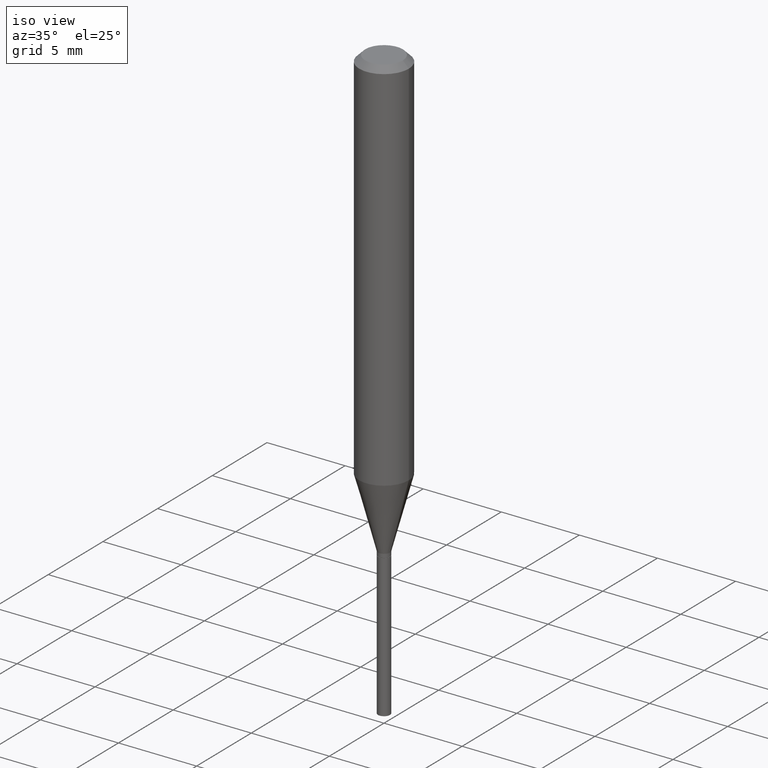
[diagram: clean part render]
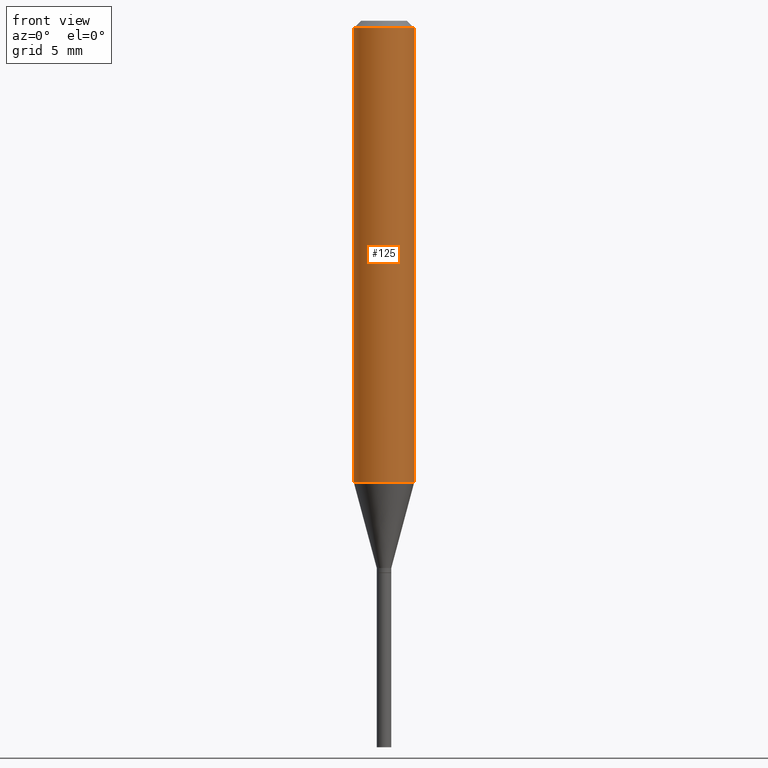
[diagram: tour spotlight — one face highlighted and labeled with its STEP entity id]
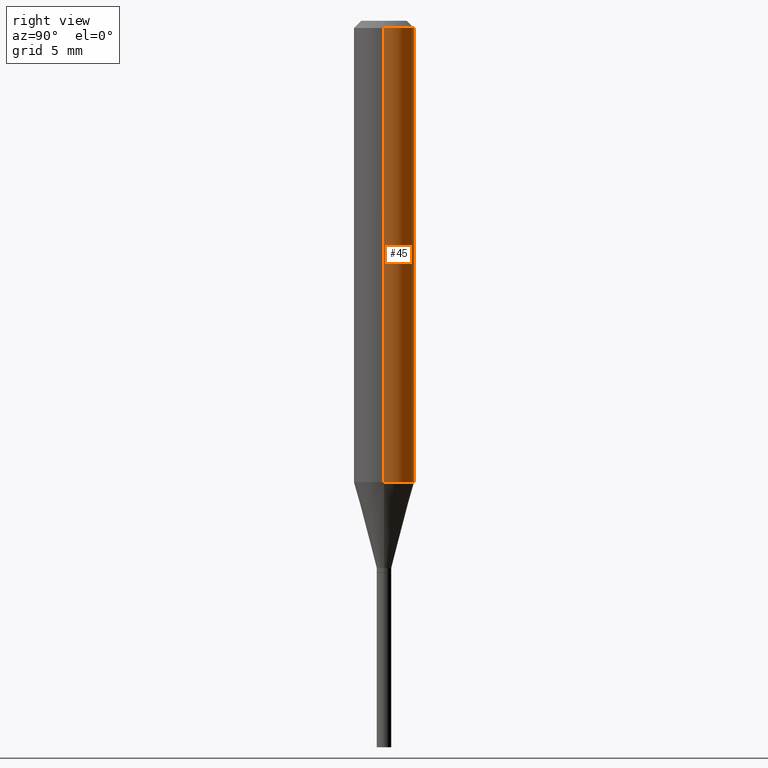
[diagram: tour spotlight — one face highlighted and labeled with its STEP entity id]
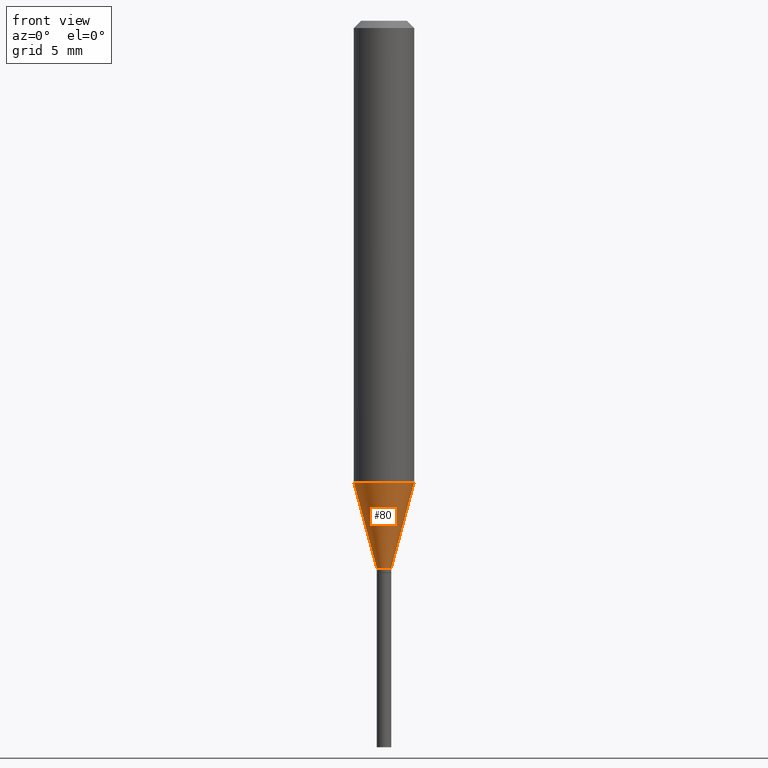
[diagram: tour spotlight — one face highlighted and labeled with its STEP entity id]
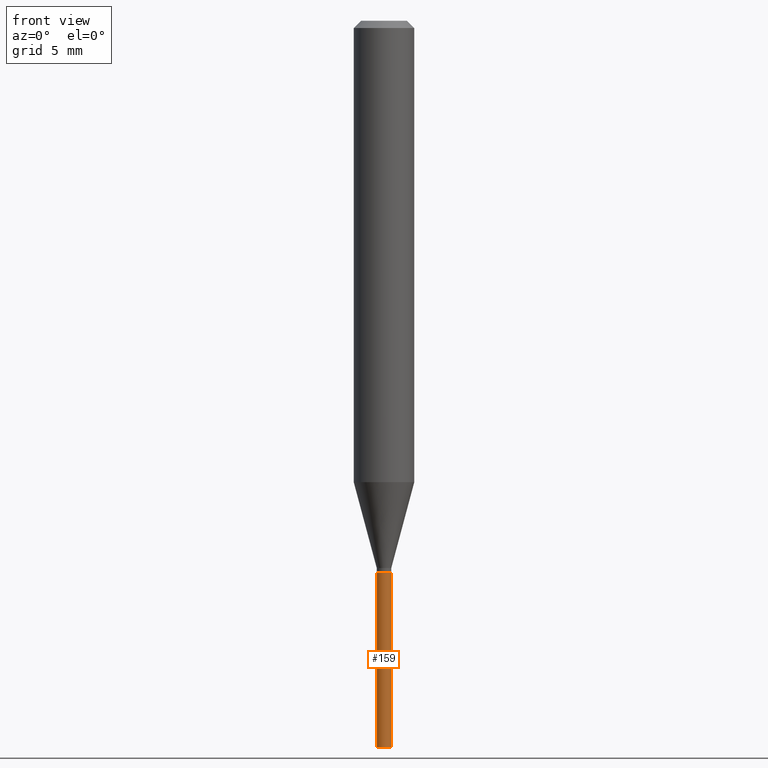
[diagram: tour spotlight — one face highlighted and labeled with its STEP entity id]
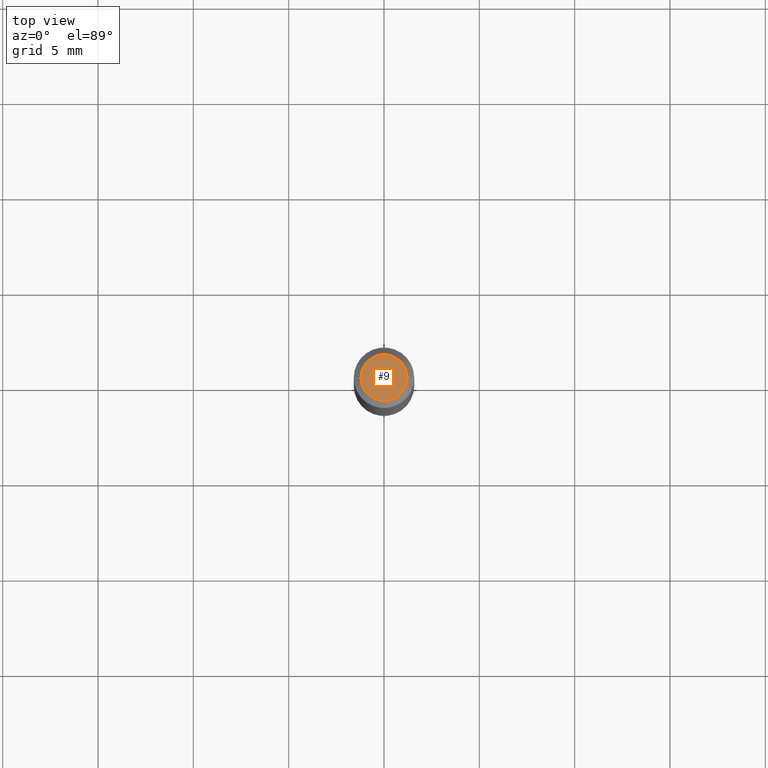
[diagram: tour spotlight — one face highlighted and labeled with its STEP entity id]
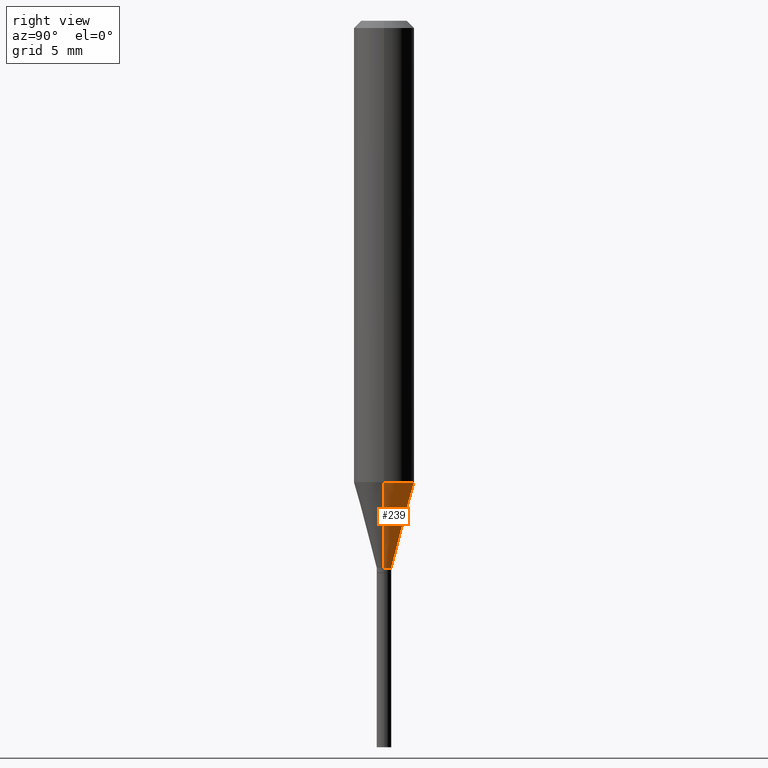
[diagram: tour spotlight — one face highlighted and labeled with its STEP entity id]
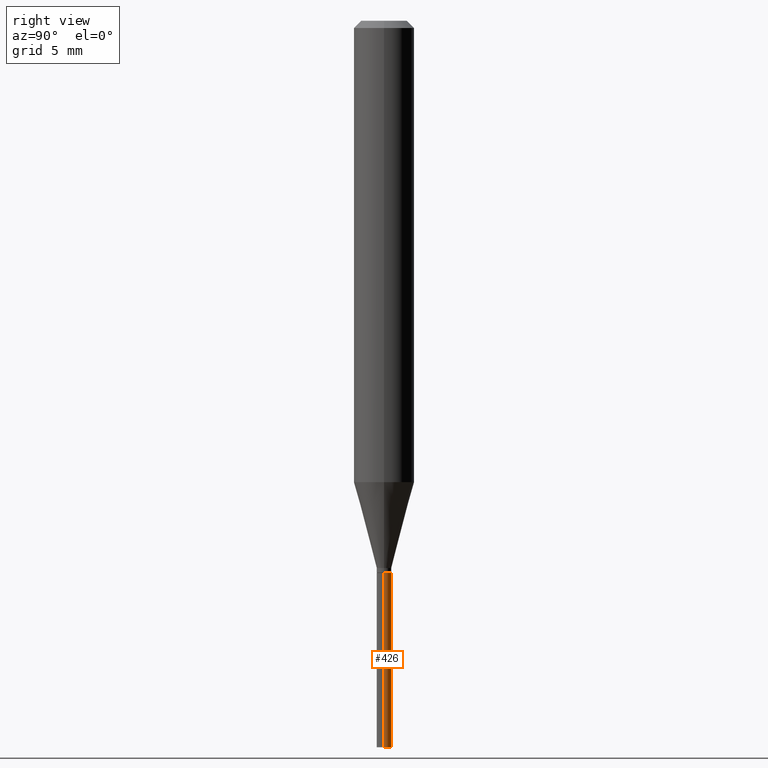
[diagram: tour spotlight — one face highlighted and labeled with its STEP entity id]
A machine part: a face-by-face anatomy tour. The part has 16 B-rep faces; the first image is the clean iso view, then the 7 largest visible faces are spotlighted one at a time (largest first), each with its STEP entity span.

Face 1 — front view, entity #125. In plain terms, the highlighted cylindrical surface (edge-blend (fillet) strip) has radius 1.5875 mm, axis along (-0, 0, 1).
Definition (entity closure, byte-faithful):
#2 = CYLINDRICAL_SURFACE ( 'NONE', #328, 0.06250000000000000000 ) ;
#10 = DIRECTION ( 'NONE',  ( 1.000000000000000000, -6.982962677686266711E-15, 0.000000000000000000 ) ) ;
#12 = EDGE_LOOP ( 'NONE', ( #315, #388, #269, #97 ) ) ;
#41 = FACE_OUTER_BOUND ( 'NONE', #12, .T. ) ;
#42 = CARTESIAN_POINT ( 'NONE',  ( 0.06250000000000000000, -4.888073874380388472E-16, -0.01499999999999999944 ) ) ;
#46 = VECTOR ( 'NONE', #271, 39.37007874015748143 ) ;
#47 = AXIS2_PLACEMENT_3D ( 'NONE', #373, #50, #10 ) ;
#50 = DIRECTION ( 'NONE',  ( -2.445468806185136597E-29, 3.491481338843145583E-15, 1.000000000000000000 ) ) ;
#65 = CIRCLE ( 'NONE', #87, 0.06250000000000000000 ) ;
#72 = EDGE_CURVE ( 'NONE', #314, #237, #309, .T. ) ;
#83 = CARTESIAN_POINT ( 'NONE',  ( -0.06249999999999999306, -2.882341379906236744E-15, -0.9527275866404792959 ) ) ;
#87 = AXIS2_PLACEMENT_3D ( 'NONE', #178, #112, #211 ) ;
#97 = ORIENTED_EDGE ( 'NONE', *, *, #381, .F. ) ;
#112 = DIRECTION ( 'NONE',  ( -2.445468806185136597E-29, 3.491481338843145583E-15, 1.000000000000000000 ) ) ;
#117 = DIRECTION ( 'NONE',  ( -2.445468806185136877E-29, 3.491481338843145188E-15, 1.000000000000000000 ) ) ;
#122 = CARTESIAN_POINT ( 'NONE',  ( 0.06250000000000000000, -4.364351673553916694E-16, 3.047610484872459871E-30 ) ) ;
#125 = ADVANCED_FACE ( 'NONE', ( #41 ), #2, .T. ) ;
#126 = EDGE_CURVE ( 'NONE', #314, #277, #65, .T. ) ;
#178 = CARTESIAN_POINT ( 'NONE',  ( 2.329865593921339312E-29, -3.326430589756299754E-15, -0.9527275866404792959 ) ) ;
#209 = VERTEX_POINT ( 'NONE', #42 ) ;
#211 = DIRECTION ( 'NONE',  ( 1.000000000000000000, -6.982962677686262766E-15, 0.000000000000000000 ) ) ;
#236 = CARTESIAN_POINT ( 'NONE',  ( -0.06250000000000000000, 4.440892098500626162E-16, -3.074334431409316114E-30 ) ) ;
#237 = VERTEX_POINT ( 'NONE', #422 ) ;
#246 = CARTESIAN_POINT ( 'NONE',  ( 0.06249999999999999306, -3.762865757111691029E-15, -0.9527275866404792959 ) ) ;
#269 = ORIENTED_EDGE ( 'NONE', *, *, #306, .T. ) ;
#271 = DIRECTION ( 'NONE',  ( -2.445468806185136877E-29, 3.491481338843145188E-15, 1.000000000000000000 ) ) ;
#277 = VERTEX_POINT ( 'NONE', #246 ) ;
#306 = EDGE_CURVE ( 'NONE', #277, #209, #439, .T. ) ;
#309 = LINE ( 'NONE', #236, #46 ) ;
#314 = VERTEX_POINT ( 'NONE', #83 ) ;
#315 = ORIENTED_EDGE ( 'NONE', *, *, #72, .F. ) ;
#328 = AXIS2_PLACEMENT_3D ( 'NONE', #400, #427, #432 ) ;
#373 = CARTESIAN_POINT ( 'NONE',  ( 3.668203209277705088E-31, -5.237222008264718399E-17, -0.01499999999999999944 ) ) ;
#381 = EDGE_CURVE ( 'NONE', #237, #209, #385, .T. ) ;
#385 = CIRCLE ( 'NONE', #47, 0.06250000000000000000 ) ;
#388 = ORIENTED_EDGE ( 'NONE', *, *, #126, .T. ) ;
#400 = CARTESIAN_POINT ( 'NONE',  ( 0.000000000000000000, 0.000000000000000000, 0.000000000000000000 ) ) ;
#410 = VECTOR ( 'NONE', #117, 39.37007874015748143 ) ;
#422 = CARTESIAN_POINT ( 'NONE',  ( -0.06250000000000000000, -1.245312195069410801E-15, -0.01499999999999999944 ) ) ;
#427 = DIRECTION ( 'NONE',  ( -2.445468806185136597E-29, 3.491481338843145583E-15, 1.000000000000000000 ) ) ;
#432 = DIRECTION ( 'NONE',  ( 1.000000000000000000, -6.982962677686266711E-15, 4.876176775795935793E-29 ) ) ;
#439 = LINE ( 'NONE', #122, #410 ) ;

Face 2 — right view, entity #45. In plain terms, the highlighted cylindrical surface (edge-blend (fillet) strip) has radius 1.5875 mm, axis along (-0, 0, 1).
Definition (entity closure, byte-faithful):
#4 = AXIS2_PLACEMENT_3D ( 'NONE', #99, #391, #96 ) ;
#42 = CARTESIAN_POINT ( 'NONE',  ( 0.06250000000000000000, -4.888073874380388472E-16, -0.01499999999999999944 ) ) ;
#45 = ADVANCED_FACE ( 'NONE', ( #348 ), #62, .T. ) ;
#46 = VECTOR ( 'NONE', #271, 39.37007874015748143 ) ;
#62 = CYLINDRICAL_SURFACE ( 'NONE', #4, 0.06250000000000000000 ) ;
#72 = EDGE_CURVE ( 'NONE', #314, #237, #309, .T. ) ;
#83 = CARTESIAN_POINT ( 'NONE',  ( -0.06249999999999999306, -2.882341379906236744E-15, -0.9527275866404792959 ) ) ;
#96 = DIRECTION ( 'NONE',  ( 1.000000000000000000, -6.982962677686266711E-15, 4.876176775795935793E-29 ) ) ;
#99 = CARTESIAN_POINT ( 'NONE',  ( 0.000000000000000000, 0.000000000000000000, 0.000000000000000000 ) ) ;
#101 = CIRCLE ( 'NONE', #351, 0.06250000000000000000 ) ;
#117 = DIRECTION ( 'NONE',  ( -2.445468806185136877E-29, 3.491481338843145188E-15, 1.000000000000000000 ) ) ;
#122 = CARTESIAN_POINT ( 'NONE',  ( 0.06250000000000000000, -4.364351673553916694E-16, 3.047610484872459871E-30 ) ) ;
#141 = CARTESIAN_POINT ( 'NONE',  ( 3.668203209277705088E-31, -5.237222008264718399E-17, -0.01499999999999999944 ) ) ;
#170 = CIRCLE ( 'NONE', #265, 0.06250000000000000000 ) ;
#192 = ORIENTED_EDGE ( 'NONE', *, *, #249, .F. ) ;
#201 = EDGE_CURVE ( 'NONE', #277, #314, #170, .T. ) ;
#209 = VERTEX_POINT ( 'NONE', #42 ) ;
#234 = ORIENTED_EDGE ( 'NONE', *, *, #72, .T. ) ;
#236 = CARTESIAN_POINT ( 'NONE',  ( -0.06250000000000000000, 4.440892098500626162E-16, -3.074334431409316114E-30 ) ) ;
#237 = VERTEX_POINT ( 'NONE', #422 ) ;
#246 = CARTESIAN_POINT ( 'NONE',  ( 0.06249999999999999306, -3.762865757111691029E-15, -0.9527275866404792959 ) ) ;
#249 = EDGE_CURVE ( 'NONE', #209, #237, #101, .T. ) ;
#265 = AXIS2_PLACEMENT_3D ( 'NONE', #316, #357, #317 ) ;
#268 = EDGE_LOOP ( 'NONE', ( #389, #234, #192, #437 ) ) ;
#271 = DIRECTION ( 'NONE',  ( -2.445468806185136877E-29, 3.491481338843145188E-15, 1.000000000000000000 ) ) ;
#276 = DIRECTION ( 'NONE',  ( -2.445468806185136597E-29, 3.491481338843145583E-15, 1.000000000000000000 ) ) ;
#277 = VERTEX_POINT ( 'NONE', #246 ) ;
#288 = DIRECTION ( 'NONE',  ( 1.000000000000000000, -6.982962677686266711E-15, 0.000000000000000000 ) ) ;
#306 = EDGE_CURVE ( 'NONE', #277, #209, #439, .T. ) ;
#309 = LINE ( 'NONE', #236, #46 ) ;
#314 = VERTEX_POINT ( 'NONE', #83 ) ;
#316 = CARTESIAN_POINT ( 'NONE',  ( 2.329865593921339312E-29, -3.326430589756299754E-15, -0.9527275866404792959 ) ) ;
#317 = DIRECTION ( 'NONE',  ( 1.000000000000000000, -6.982962677686262766E-15, 0.000000000000000000 ) ) ;
#348 = FACE_OUTER_BOUND ( 'NONE', #268, .T. ) ;
#351 = AXIS2_PLACEMENT_3D ( 'NONE', #141, #276, #288 ) ;
#357 = DIRECTION ( 'NONE',  ( -2.445468806185136597E-29, 3.491481338843145583E-15, 1.000000000000000000 ) ) ;
#389 = ORIENTED_EDGE ( 'NONE', *, *, #201, .T. ) ;
#391 = DIRECTION ( 'NONE',  ( -2.445468806185136597E-29, 3.491481338843145583E-15, 1.000000000000000000 ) ) ;
#410 = VECTOR ( 'NONE', #117, 39.37007874015748143 ) ;
#422 = CARTESIAN_POINT ( 'NONE',  ( -0.06250000000000000000, -1.245312195069410801E-15, -0.01499999999999999944 ) ) ;
#437 = ORIENTED_EDGE ( 'NONE', *, *, #306, .F. ) ;
#439 = LINE ( 'NONE', #122, #410 ) ;

Face 3 — front view, entity #80. In plain terms, the highlighted conical surface has half-angle 15 deg.
Definition (entity closure, byte-faithful):
#14 = DIRECTION ( 'NONE',  ( -0.2588190451025215721, 5.211531920934551831E-15, 0.9659258262890679791 ) ) ;
#20 = VERTEX_POINT ( 'NONE', #304 ) ;
#21 = DIRECTION ( 'NONE',  ( -2.445468806185136597E-29, 3.491481338843145583E-15, 1.000000000000000000 ) ) ;
#53 = ORIENTED_EDGE ( 'NONE', *, *, #126, .F. ) ;
#61 = DIRECTION ( 'NONE',  ( 1.000000000000000000, -6.982962677686271444E-15, 0.000000000000000000 ) ) ;
#65 = CIRCLE ( 'NONE', #87, 0.06250000000000000000 ) ;
#80 = ADVANCED_FACE ( 'NONE', ( #233 ), #251, .T. ) ;
#81 = LINE ( 'NONE', #190, #111 ) ;
#83 = CARTESIAN_POINT ( 'NONE',  ( -0.06249999999999999306, -2.882341379906236744E-15, -0.9527275866404792959 ) ) ;
#87 = AXIS2_PLACEMENT_3D ( 'NONE', #178, #112, #211 ) ;
#90 = EDGE_CURVE ( 'NONE', #20, #143, #447, .T. ) ;
#111 = VECTOR ( 'NONE', #291, 39.37007874015748143 ) ;
#112 = DIRECTION ( 'NONE',  ( -2.445468806185136597E-29, 3.491481338843145583E-15, 1.000000000000000000 ) ) ;
#126 = EDGE_CURVE ( 'NONE', #314, #277, #65, .T. ) ;
#131 = ORIENTED_EDGE ( 'NONE', *, *, #446, .T. ) ;
#143 = VERTEX_POINT ( 'NONE', #175 ) ;
#166 = DIRECTION ( 'NONE',  ( 1.000000000000000000, -6.982962677686271444E-15, 0.000000000000000000 ) ) ;
#175 = CARTESIAN_POINT ( 'NONE',  ( 0.01500000000000006189, -4.050118353058049207E-15, -1.130000000000000115 ) ) ;
#178 = CARTESIAN_POINT ( 'NONE',  ( 2.329865593921339312E-29, -3.326430589756299754E-15, -0.9527275866404792959 ) ) ;
#190 = CARTESIAN_POINT ( 'NONE',  ( 0.01500000000000006189, -4.050118353058049207E-15, -1.130000000000000115 ) ) ;
#200 = CARTESIAN_POINT ( 'NONE',  ( 2.763379750989204444E-29, -3.945373912892755049E-15, -1.130000000000000115 ) ) ;
#211 = DIRECTION ( 'NONE',  ( 1.000000000000000000, -6.982962677686262766E-15, 0.000000000000000000 ) ) ;
#233 = FACE_OUTER_BOUND ( 'NONE', #451, .T. ) ;
#235 = VECTOR ( 'NONE', #14, 39.37007874015748143 ) ;
#246 = CARTESIAN_POINT ( 'NONE',  ( 0.06249999999999999306, -3.762865757111691029E-15, -0.9527275866404792959 ) ) ;
#250 = AXIS2_PLACEMENT_3D ( 'NONE', #384, #445, #61 ) ;
#251 = CONICAL_SURFACE ( 'NONE', #250, 0.01500000000000006189, 0.2617993877991502960 ) ;
#277 = VERTEX_POINT ( 'NONE', #246 ) ;
#291 = DIRECTION ( 'NONE',  ( 0.2588190451025215721, 1.565188264969619995E-15, 0.9659258262890679791 ) ) ;
#304 = CARTESIAN_POINT ( 'NONE',  ( -0.01500000000000006189, -3.360566941217487941E-15, -1.130000000000000115 ) ) ;
#314 = VERTEX_POINT ( 'NONE', #83 ) ;
#337 = CARTESIAN_POINT ( 'NONE',  ( -0.01500000000000006189, -3.838792502528739137E-15, -1.130000000000000115 ) ) ;
#347 = ORIENTED_EDGE ( 'NONE', *, *, #412, .F. ) ;
#369 = LINE ( 'NONE', #337, #235 ) ;
#374 = ORIENTED_EDGE ( 'NONE', *, *, #90, .T. ) ;
#375 = AXIS2_PLACEMENT_3D ( 'NONE', #200, #21, #166 ) ;
#384 = CARTESIAN_POINT ( 'NONE',  ( 2.763379750989204444E-29, -3.945373912892755049E-15, -1.130000000000000115 ) ) ;
#412 = EDGE_CURVE ( 'NONE', #20, #314, #369, .T. ) ;
#445 = DIRECTION ( 'NONE',  ( -2.445468806185136597E-29, 3.491481338843145583E-15, 1.000000000000000000 ) ) ;
#446 = EDGE_CURVE ( 'NONE', #143, #277, #81, .T. ) ;
#447 = CIRCLE ( 'NONE', #375, 0.01500000000000006189 ) ;
#451 = EDGE_LOOP ( 'NONE', ( #347, #374, #131, #53 ) ) ;

Face 4 — front view, entity #159. In plain terms, the highlighted cylindrical surface (edge-blend (fillet) strip) has radius 0.381 mm, axis along (-0, 0, 1).
Definition (entity closure, byte-faithful):
#22 = EDGE_LOOP ( 'NONE', ( #340, #165, #420, #152 ) ) ;
#54 = AXIS2_PLACEMENT_3D ( 'NONE', #107, #457, #109 ) ;
#69 = FACE_OUTER_BOUND ( 'NONE', #22, .T. ) ;
#79 = CARTESIAN_POINT ( 'NONE',  ( 0.000000000000000000, 0.000000000000000000, 0.000000000000000000 ) ) ;
#91 = VERTEX_POINT ( 'NONE', #215 ) ;
#98 = VERTEX_POINT ( 'NONE', #401 ) ;
#107 = CARTESIAN_POINT ( 'NONE',  ( 3.668203209277704895E-29, -5.237222008264718177E-15, -1.500000000000000222 ) ) ;
#109 = DIRECTION ( 'NONE',  ( 1.000000000000000000, -6.982962677686268288E-15, 0.000000000000000000 ) ) ;
#148 = DIRECTION ( 'NONE',  ( -2.445468806185136877E-29, 3.491481338843145188E-15, 1.000000000000000000 ) ) ;
#152 = ORIENTED_EDGE ( 'NONE', *, *, #197, .F. ) ;
#159 = ADVANCED_FACE ( 'NONE', ( #69 ), #322, .T. ) ;
#165 = ORIENTED_EDGE ( 'NONE', *, *, #219, .T. ) ;
#197 = EDGE_CURVE ( 'NONE', #98, #380, #258, .T. ) ;
#215 = CARTESIAN_POINT ( 'NONE',  ( -0.01499999999999999944, -4.502173956908937315E-15, -1.500000000000000222 ) ) ;
#217 = CARTESIAN_POINT ( 'NONE',  ( 2.787834439051055989E-29, -3.980288726281186698E-15, -1.140000000000000124 ) ) ;
#219 = EDGE_CURVE ( 'NONE', #91, #273, #363, .T. ) ;
#220 = DIRECTION ( 'NONE',  ( 1.000000000000000000, -6.982962677686268288E-15, 0.000000000000000000 ) ) ;
#222 = LINE ( 'NONE', #330, #312 ) ;
#247 = CARTESIAN_POINT ( 'NONE',  ( 0.01499999999999999944, -5.341966448430012335E-15, -1.500000000000000222 ) ) ;
#258 = CIRCLE ( 'NONE', #329, 0.01499999999999999944 ) ;
#263 = CARTESIAN_POINT ( 'NONE',  ( 0.01499999999999999944, -4.085033166446480067E-15, -1.140000000000000124 ) ) ;
#273 = VERTEX_POINT ( 'NONE', #247 ) ;
#282 = EDGE_CURVE ( 'NONE', #91, #98, #398, .T. ) ;
#285 = CARTESIAN_POINT ( 'NONE',  ( -0.01499999999999999944, 1.065814103640150239E-16, -7.378402635382358533E-31 ) ) ;
#312 = VECTOR ( 'NONE', #148, 39.37007874015748143 ) ;
#319 = AXIS2_PLACEMENT_3D ( 'NONE', #79, #394, #459 ) ;
#322 = CYLINDRICAL_SURFACE ( 'NONE', #319, 0.01499999999999999944 ) ;
#329 = AXIS2_PLACEMENT_3D ( 'NONE', #217, #367, #220 ) ;
#330 = CARTESIAN_POINT ( 'NONE',  ( 0.01499999999999999944, -1.047444401652940105E-16, 7.314265163693904390E-31 ) ) ;
#340 = ORIENTED_EDGE ( 'NONE', *, *, #282, .F. ) ;
#363 = CIRCLE ( 'NONE', #54, 0.01499999999999999944 ) ;
#367 = DIRECTION ( 'NONE',  ( -2.445468806185136597E-29, 3.491481338843145583E-15, 1.000000000000000000 ) ) ;
#380 = VERTEX_POINT ( 'NONE', #263 ) ;
#394 = DIRECTION ( 'NONE',  ( -2.445468806185136597E-29, 3.491481338843145583E-15, 1.000000000000000000 ) ) ;
#398 = LINE ( 'NONE', #285, #461 ) ;
#401 = CARTESIAN_POINT ( 'NONE',  ( -0.01499999999999999944, -4.502173956908937315E-15, -1.140000000000000124 ) ) ;
#420 = ORIENTED_EDGE ( 'NONE', *, *, #454, .T. ) ;
#429 = DIRECTION ( 'NONE',  ( -2.445468806185136877E-29, 3.491481338843145188E-15, 1.000000000000000000 ) ) ;
#454 = EDGE_CURVE ( 'NONE', #273, #380, #222, .T. ) ;
#457 = DIRECTION ( 'NONE',  ( -2.445468806185136597E-29, 3.491481338843145583E-15, 1.000000000000000000 ) ) ;
#459 = DIRECTION ( 'NONE',  ( 1.000000000000000000, -6.982962677686267499E-15, 4.876176775795936353E-29 ) ) ;
#461 = VECTOR ( 'NONE', #429, 39.37007874015748143 ) ;

Face 5 — top view, entity #9. In plain terms, the highlighted planar face has unit normal (0, -0, -1).
Definition (entity closure, byte-faithful):
#9 = ADVANCED_FACE ( 'NONE', ( #354 ), #442, .F. ) ;
#39 = CIRCLE ( 'NONE', #393, 0.04749999999999999362 ) ;
#92 = ORIENTED_EDGE ( 'NONE', *, *, #456, .T. ) ;
#114 = DIRECTION ( 'NONE',  ( -2.445468806185136597E-29, 3.491481338843145583E-15, 1.000000000000000000 ) ) ;
#120 = CARTESIAN_POINT ( 'NONE',  ( 0.04749999999999999362, -4.035134999187565804E-16, 7.384026679692592746E-16 ) ) ;
#150 = DIRECTION ( 'NONE',  ( 1.000000000000000000, -6.982962677686267499E-15, 4.852736867747366768E-29 ) ) ;
#168 = VERTEX_POINT ( 'NONE', #359 ) ;
#187 = AXIS2_PLACEMENT_3D ( 'NONE', #294, #435, #333 ) ;
#198 = DIRECTION ( 'NONE',  ( -1.000000000000000000, 6.982962677686265922E-15, -4.876176775795935793E-29 ) ) ;
#206 = CIRCLE ( 'NONE', #187, 0.04749999999999999362 ) ;
#225 = EDGE_LOOP ( 'NONE', ( #232, #92 ) ) ;
#232 = ORIENTED_EDGE ( 'NONE', *, *, #455, .T. ) ;
#241 = CARTESIAN_POINT ( 'NONE',  ( 3.316907271900976096E-16, 0.04749999999999999362, 2.033559703895789590E-16 ) ) ;
#294 = CARTESIAN_POINT ( 'NONE',  ( -1.805740690922698150E-44, 2.578119135766651022E-30, 7.384026679692567108E-16 ) ) ;
#331 = CARTESIAN_POINT ( 'NONE',  ( -1.805740690922698150E-44, 2.578119135766651022E-30, 7.384026679692567108E-16 ) ) ;
#333 = DIRECTION ( 'NONE',  ( 1.000000000000000000, -6.982962677686267499E-15, 4.852736867747366768E-29 ) ) ;
#354 = FACE_OUTER_BOUND ( 'NONE', #225, .T. ) ;
#359 = CARTESIAN_POINT ( 'NONE',  ( -0.04749999999999999362, 3.578768372314223818E-16, 7.384026679692543442E-16 ) ) ;
#386 = VERTEX_POINT ( 'NONE', #120 ) ;
#393 = AXIS2_PLACEMENT_3D ( 'NONE', #331, #114, #150 ) ;
#409 = AXIS2_PLACEMENT_3D ( 'NONE', #241, #452, #198 ) ;
#435 = DIRECTION ( 'NONE',  ( -2.445468806185136597E-29, 3.491481338843145583E-15, 1.000000000000000000 ) ) ;
#442 = PLANE ( 'NONE',  #409 ) ;
#452 = DIRECTION ( 'NONE',  ( 2.438088387897960049E-29, -3.491481338843145188E-15, -1.000000000000000000 ) ) ;
#455 = EDGE_CURVE ( 'NONE', #168, #386, #39, .T. ) ;
#456 = EDGE_CURVE ( 'NONE', #386, #168, #206, .T. ) ;

Face 6 — right view, entity #239. In plain terms, the highlighted conical surface has half-angle 15 deg.
Definition (entity closure, byte-faithful):
#14 = DIRECTION ( 'NONE',  ( -0.2588190451025215721, 5.211531920934551831E-15, 0.9659258262890679791 ) ) ;
#20 = VERTEX_POINT ( 'NONE', #304 ) ;
#75 = AXIS2_PLACEMENT_3D ( 'NONE', #191, #88, #228 ) ;
#81 = LINE ( 'NONE', #190, #111 ) ;
#83 = CARTESIAN_POINT ( 'NONE',  ( -0.06249999999999999306, -2.882341379906236744E-15, -0.9527275866404792959 ) ) ;
#88 = DIRECTION ( 'NONE',  ( -2.445468806185136597E-29, 3.491481338843145583E-15, 1.000000000000000000 ) ) ;
#111 = VECTOR ( 'NONE', #291, 39.37007874015748143 ) ;
#135 = DIRECTION ( 'NONE',  ( 1.000000000000000000, -6.982962677686271444E-15, 0.000000000000000000 ) ) ;
#137 = CARTESIAN_POINT ( 'NONE',  ( 2.763379750989204444E-29, -3.945373912892755049E-15, -1.130000000000000115 ) ) ;
#143 = VERTEX_POINT ( 'NONE', #175 ) ;
#156 = ORIENTED_EDGE ( 'NONE', *, *, #379, .T. ) ;
#170 = CIRCLE ( 'NONE', #265, 0.06250000000000000000 ) ;
#175 = CARTESIAN_POINT ( 'NONE',  ( 0.01500000000000006189, -4.050118353058049207E-15, -1.130000000000000115 ) ) ;
#190 = CARTESIAN_POINT ( 'NONE',  ( 0.01500000000000006189, -4.050118353058049207E-15, -1.130000000000000115 ) ) ;
#191 = CARTESIAN_POINT ( 'NONE',  ( 2.763379750989204444E-29, -3.945373912892755049E-15, -1.130000000000000115 ) ) ;
#201 = EDGE_CURVE ( 'NONE', #277, #314, #170, .T. ) ;
#228 = DIRECTION ( 'NONE',  ( 1.000000000000000000, -6.982962677686271444E-15, 0.000000000000000000 ) ) ;
#235 = VECTOR ( 'NONE', #14, 39.37007874015748143 ) ;
#238 = EDGE_LOOP ( 'NONE', ( #156, #243, #321, #436 ) ) ;
#239 = ADVANCED_FACE ( 'NONE', ( #466 ), #244, .T. ) ;
#243 = ORIENTED_EDGE ( 'NONE', *, *, #412, .T. ) ;
#244 = CONICAL_SURFACE ( 'NONE', #403, 0.01500000000000006189, 0.2617993877991502960 ) ;
#246 = CARTESIAN_POINT ( 'NONE',  ( 0.06249999999999999306, -3.762865757111691029E-15, -0.9527275866404792959 ) ) ;
#265 = AXIS2_PLACEMENT_3D ( 'NONE', #316, #357, #317 ) ;
#277 = VERTEX_POINT ( 'NONE', #246 ) ;
#287 = CIRCLE ( 'NONE', #75, 0.01500000000000006189 ) ;
#291 = DIRECTION ( 'NONE',  ( 0.2588190451025215721, 1.565188264969619995E-15, 0.9659258262890679791 ) ) ;
#304 = CARTESIAN_POINT ( 'NONE',  ( -0.01500000000000006189, -3.360566941217487941E-15, -1.130000000000000115 ) ) ;
#314 = VERTEX_POINT ( 'NONE', #83 ) ;
#316 = CARTESIAN_POINT ( 'NONE',  ( 2.329865593921339312E-29, -3.326430589756299754E-15, -0.9527275866404792959 ) ) ;
#317 = DIRECTION ( 'NONE',  ( 1.000000000000000000, -6.982962677686262766E-15, 0.000000000000000000 ) ) ;
#321 = ORIENTED_EDGE ( 'NONE', *, *, #201, .F. ) ;
#324 = DIRECTION ( 'NONE',  ( -2.445468806185136597E-29, 3.491481338843145583E-15, 1.000000000000000000 ) ) ;
#337 = CARTESIAN_POINT ( 'NONE',  ( -0.01500000000000006189, -3.838792502528739137E-15, -1.130000000000000115 ) ) ;
#357 = DIRECTION ( 'NONE',  ( -2.445468806185136597E-29, 3.491481338843145583E-15, 1.000000000000000000 ) ) ;
#369 = LINE ( 'NONE', #337, #235 ) ;
#379 = EDGE_CURVE ( 'NONE', #143, #20, #287, .T. ) ;
#403 = AXIS2_PLACEMENT_3D ( 'NONE', #137, #324, #135 ) ;
#412 = EDGE_CURVE ( 'NONE', #20, #314, #369, .T. ) ;
#436 = ORIENTED_EDGE ( 'NONE', *, *, #446, .F. ) ;
#446 = EDGE_CURVE ( 'NONE', #143, #277, #81, .T. ) ;
#466 = FACE_OUTER_BOUND ( 'NONE', #238, .T. ) ;

Face 7 — right view, entity #426. In plain terms, the highlighted cylindrical surface (edge-blend (fillet) strip) has radius 0.381 mm, axis along (-0, 0, 1).
Definition (entity closure, byte-faithful):
#29 = ORIENTED_EDGE ( 'NONE', *, *, #454, .F. ) ;
#60 = AXIS2_PLACEMENT_3D ( 'NONE', #377, #256, #404 ) ;
#66 = AXIS2_PLACEMENT_3D ( 'NONE', #438, #151, #411 ) ;
#71 = CARTESIAN_POINT ( 'NONE',  ( 3.668203209277704895E-29, -5.237222008264718177E-15, -1.500000000000000222 ) ) ;
#85 = ORIENTED_EDGE ( 'NONE', *, *, #336, .F. ) ;
#91 = VERTEX_POINT ( 'NONE', #215 ) ;
#98 = VERTEX_POINT ( 'NONE', #401 ) ;
#110 = CIRCLE ( 'NONE', #449, 0.01499999999999999944 ) ;
#147 = CIRCLE ( 'NONE', #60, 0.01499999999999999944 ) ;
#148 = DIRECTION ( 'NONE',  ( -2.445468806185136877E-29, 3.491481338843145188E-15, 1.000000000000000000 ) ) ;
#151 = DIRECTION ( 'NONE',  ( -2.445468806185136597E-29, 3.491481338843145583E-15, 1.000000000000000000 ) ) ;
#155 = FACE_OUTER_BOUND ( 'NONE', #196, .T. ) ;
#196 = EDGE_LOOP ( 'NONE', ( #229, #227, #85, #29 ) ) ;
#215 = CARTESIAN_POINT ( 'NONE',  ( -0.01499999999999999944, -4.502173956908937315E-15, -1.500000000000000222 ) ) ;
#222 = LINE ( 'NONE', #330, #312 ) ;
#227 = ORIENTED_EDGE ( 'NONE', *, *, #282, .T. ) ;
#229 = ORIENTED_EDGE ( 'NONE', *, *, #255, .T. ) ;
#247 = CARTESIAN_POINT ( 'NONE',  ( 0.01499999999999999944, -5.341966448430012335E-15, -1.500000000000000222 ) ) ;
#255 = EDGE_CURVE ( 'NONE', #273, #91, #110, .T. ) ;
#256 = DIRECTION ( 'NONE',  ( -2.445468806185136597E-29, 3.491481338843145583E-15, 1.000000000000000000 ) ) ;
#263 = CARTESIAN_POINT ( 'NONE',  ( 0.01499999999999999944, -4.085033166446480067E-15, -1.140000000000000124 ) ) ;
#273 = VERTEX_POINT ( 'NONE', #247 ) ;
#281 = DIRECTION ( 'NONE',  ( -2.445468806185136597E-29, 3.491481338843145583E-15, 1.000000000000000000 ) ) ;
#282 = EDGE_CURVE ( 'NONE', #91, #98, #398, .T. ) ;
#285 = CARTESIAN_POINT ( 'NONE',  ( -0.01499999999999999944, 1.065814103640150239E-16, -7.378402635382358533E-31 ) ) ;
#312 = VECTOR ( 'NONE', #148, 39.37007874015748143 ) ;
#330 = CARTESIAN_POINT ( 'NONE',  ( 0.01499999999999999944, -1.047444401652940105E-16, 7.314265163693904390E-31 ) ) ;
#336 = EDGE_CURVE ( 'NONE', #380, #98, #147, .T. ) ;
#371 = CYLINDRICAL_SURFACE ( 'NONE', #66, 0.01499999999999999944 ) ;
#377 = CARTESIAN_POINT ( 'NONE',  ( 2.787834439051055989E-29, -3.980288726281186698E-15, -1.140000000000000124 ) ) ;
#380 = VERTEX_POINT ( 'NONE', #263 ) ;
#398 = LINE ( 'NONE', #285, #461 ) ;
#401 = CARTESIAN_POINT ( 'NONE',  ( -0.01499999999999999944, -4.502173956908937315E-15, -1.140000000000000124 ) ) ;
#404 = DIRECTION ( 'NONE',  ( 1.000000000000000000, -6.982962677686268288E-15, 0.000000000000000000 ) ) ;
#411 = DIRECTION ( 'NONE',  ( 1.000000000000000000, -6.982962677686267499E-15, 4.876176775795936353E-29 ) ) ;
#424 = DIRECTION ( 'NONE',  ( 1.000000000000000000, -6.982962677686268288E-15, 0.000000000000000000 ) ) ;
#426 = ADVANCED_FACE ( 'NONE', ( #155 ), #371, .T. ) ;
#429 = DIRECTION ( 'NONE',  ( -2.445468806185136877E-29, 3.491481338843145188E-15, 1.000000000000000000 ) ) ;
#438 = CARTESIAN_POINT ( 'NONE',  ( 0.000000000000000000, 0.000000000000000000, 0.000000000000000000 ) ) ;
#449 = AXIS2_PLACEMENT_3D ( 'NONE', #71, #281, #424 ) ;
#454 = EDGE_CURVE ( 'NONE', #273, #380, #222, .T. ) ;
#461 = VECTOR ( 'NONE', #429, 39.37007874015748143 ) ;